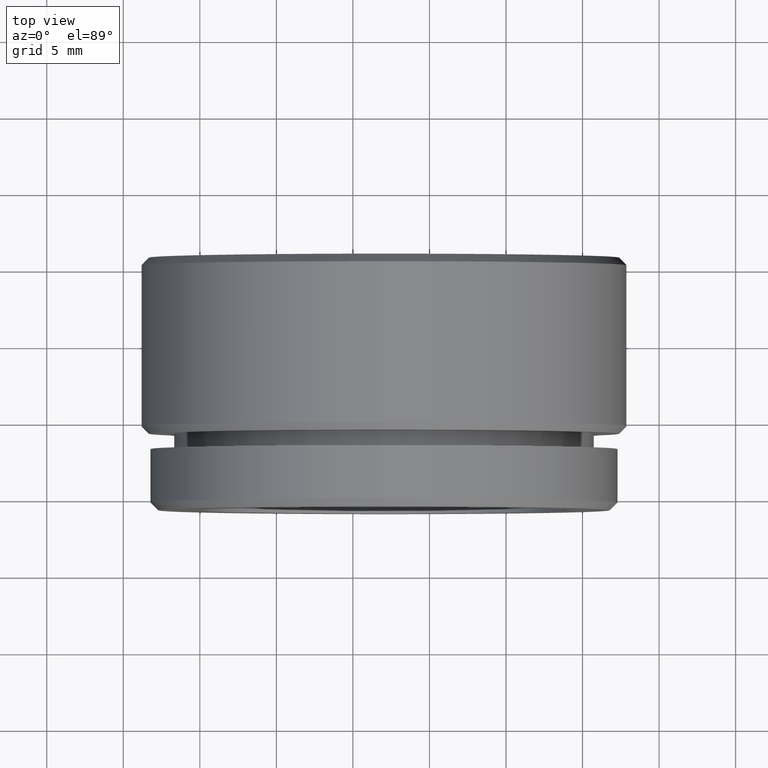
[diagram: clean part render]
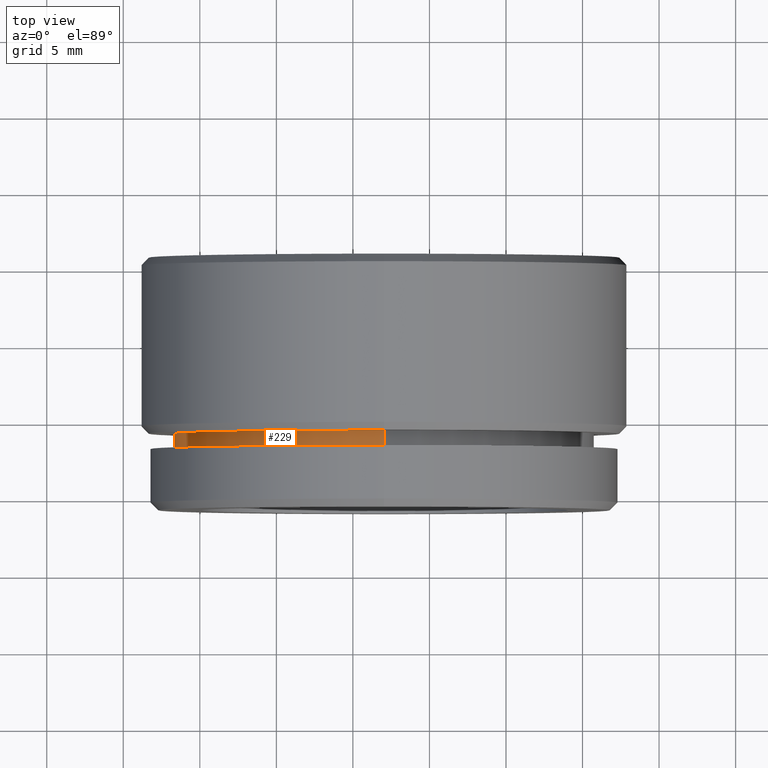
[diagram: same view with one face highlighted and labeled with its STEP entity id]
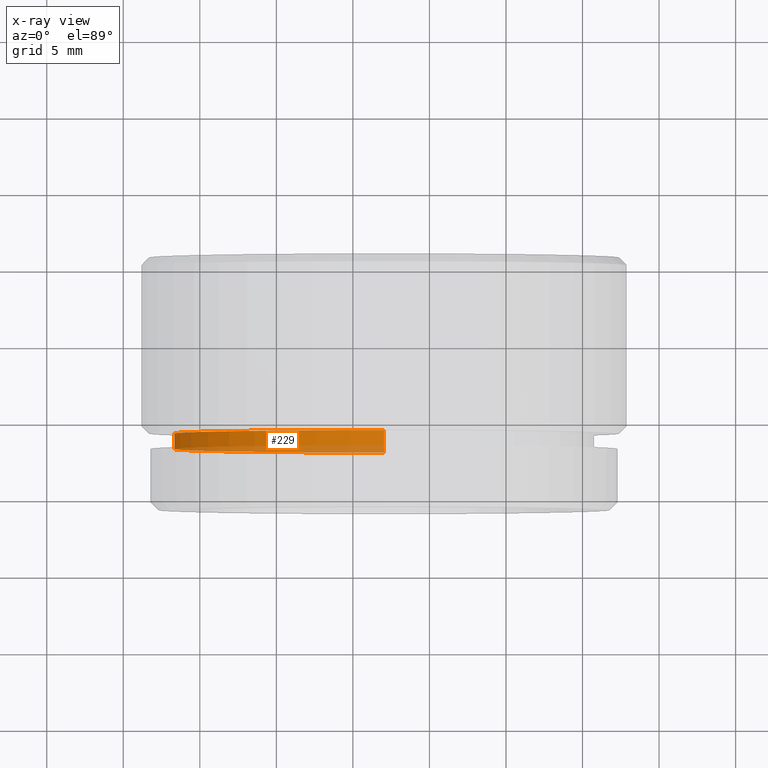
[diagram: x-ray of the same camera — body ghosted, the highlighted face saturated]
A machine part, top view. The second image highlights one B-rep face of the part: STEP entity #229.
The next image is the same camera in x-ray: the body ghosted, the highlighted face saturated — about 28% of this face is hidden behind the body in this view.
In plain terms, the highlighted cylindrical surface (partial cylindrical patch) has radius 13.75 mm, axis along (0, -1, 0).
Its self-contained STEP definition (entity closure, byte-faithful):
#20 = VERTEX_POINT ( 'NONE', #1010 ) ;
#23 = EDGE_CURVE ( 'NONE', #376, #697, #894, .T. ) ;
#56 = DIRECTION ( 'NONE',  ( 0.000000000000000000, -1.000000000000000000, 0.000000000000000000 ) ) ;
#61 = CIRCLE ( 'NONE', #1329, 13.75000000000000000 ) ;
#73 = ORIENTED_EDGE ( 'NONE', *, *, #1083, .F. ) ;
#89 = CARTESIAN_POINT ( 'NONE',  ( -62.96855859389910393, 4.153165921879420353, 6.176470295292635804 ) ) ;
#141 = AXIS2_PLACEMENT_3D ( 'NONE', #998, #1341, #988 ) ;
#171 = CYLINDRICAL_SURFACE ( 'NONE', #406, 13.75000000000000000 ) ;
#229 = ADVANCED_FACE ( 'NONE', ( #1221 ), #171, .T. ) ;
#253 = LINE ( 'NONE', #407, #1207 ) ;
#278 = DIRECTION ( 'NONE',  ( 0.000000000000000000, -1.000000000000000000, 0.000000000000000000 ) ) ;
#376 = VERTEX_POINT ( 'NONE', #604 ) ;
#383 = CARTESIAN_POINT ( 'NONE',  ( -62.96855859389910393, 8.153165921879420353, 33.67647029529263847 ) ) ;
#384 = EDGE_CURVE ( 'NONE', #1490, #697, #61, .T. ) ;
#406 = AXIS2_PLACEMENT_3D ( 'NONE', #1107, #56, #510 ) ;
#407 = CARTESIAN_POINT ( 'NONE',  ( -62.96855859389910393, 4.153165921879420353, 33.67647029529263847 ) ) ;
#497 = VECTOR ( 'NONE', #1046, 1000.000000000000000 ) ;
#510 = DIRECTION ( 'NONE',  ( 0.000000000000000000, 0.000000000000000000, -1.000000000000000000 ) ) ;
#584 = ORIENTED_EDGE ( 'NONE', *, *, #1509, .T. ) ;
#604 = CARTESIAN_POINT ( 'NONE',  ( -62.96855859389910393, 9.153165921879422129, 6.176470295292635804 ) ) ;
#615 = DIRECTION ( 'NONE',  ( 0.000000000000000000, -1.000000000000000000, 0.000000000000000000 ) ) ;
#697 = VERTEX_POINT ( 'NONE', #748 ) ;
#748 = CARTESIAN_POINT ( 'NONE',  ( -62.96855859389910393, 8.153165921879420353, 6.176470295292635804 ) ) ;
#797 = EDGE_LOOP ( 'NONE', ( #73, #584, #1395, #1404 ) ) ;
#894 = LINE ( 'NONE', #89, #497 ) ;
#972 = DIRECTION ( 'NONE',  ( 0.000000000000000000, 0.000000000000000000, -1.000000000000000000 ) ) ;
#988 = DIRECTION ( 'NONE',  ( 0.000000000000000000, 0.000000000000000000, -1.000000000000000000 ) ) ;
#998 = CARTESIAN_POINT ( 'NONE',  ( -62.96855859389910393, 9.153165921879422129, 19.92647029529263492 ) ) ;
#1010 = CARTESIAN_POINT ( 'NONE',  ( -62.96855859389910393, 9.153165921879422129, 33.67647029529263847 ) ) ;
#1046 = DIRECTION ( 'NONE',  ( 0.000000000000000000, -1.000000000000000000, 0.000000000000000000 ) ) ;
#1083 = EDGE_CURVE ( 'NONE', #20, #1490, #253, .T. ) ;
#1107 = CARTESIAN_POINT ( 'NONE',  ( -62.96855859389910393, 4.153165921879420353, 19.92647029529263492 ) ) ;
#1195 = CARTESIAN_POINT ( 'NONE',  ( -62.96855859389910393, 8.153165921879420353, 19.92647029529263492 ) ) ;
#1207 = VECTOR ( 'NONE', #278, 1000.000000000000000 ) ;
#1221 = FACE_OUTER_BOUND ( 'NONE', #797, .T. ) ;
#1329 = AXIS2_PLACEMENT_3D ( 'NONE', #1195, #615, #972 ) ;
#1341 = DIRECTION ( 'NONE',  ( 0.000000000000000000, -1.000000000000000000, 0.000000000000000000 ) ) ;
#1351 = CIRCLE ( 'NONE', #141, 13.75000000000000000 ) ;
#1395 = ORIENTED_EDGE ( 'NONE', *, *, #23, .T. ) ;
#1404 = ORIENTED_EDGE ( 'NONE', *, *, #384, .F. ) ;
#1490 = VERTEX_POINT ( 'NONE', #383 ) ;
#1509 = EDGE_CURVE ( 'NONE', #20, #376, #1351, .T. ) ;